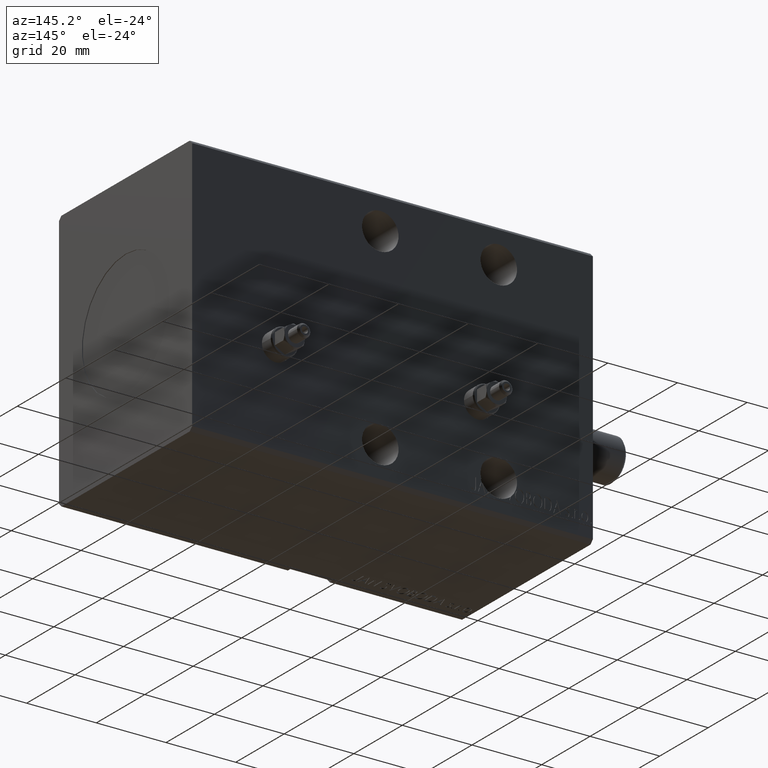
[diagram: clean part render]
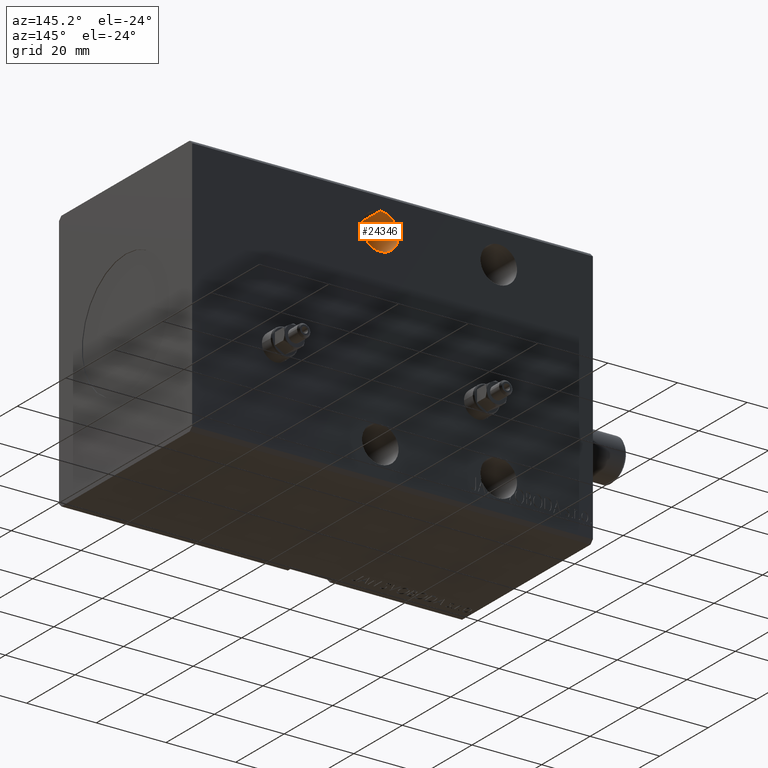
[diagram: same view with one face highlighted and labeled with its STEP entity id]
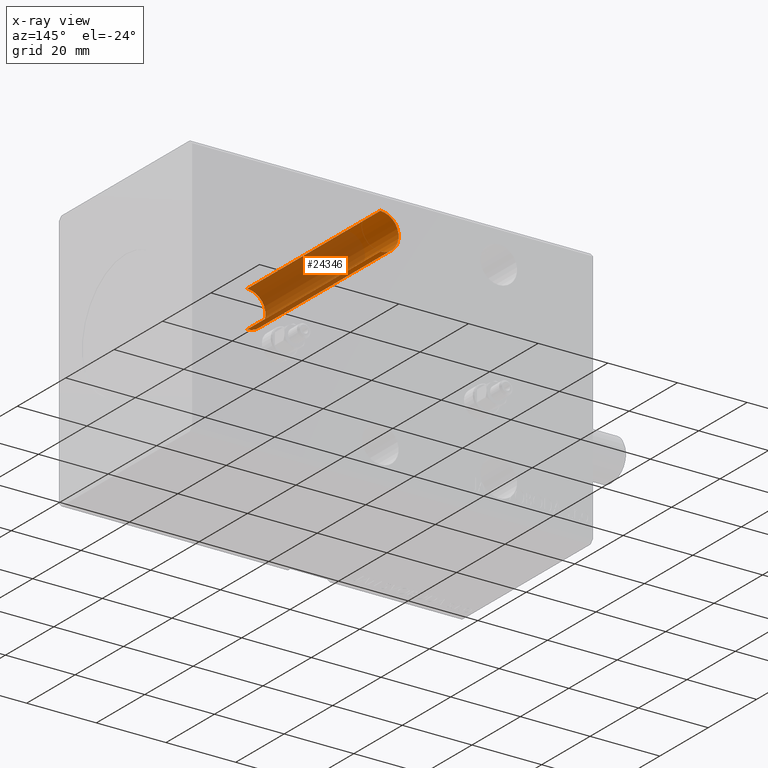
[diagram: x-ray of the same camera — body ghosted, the highlighted face saturated]
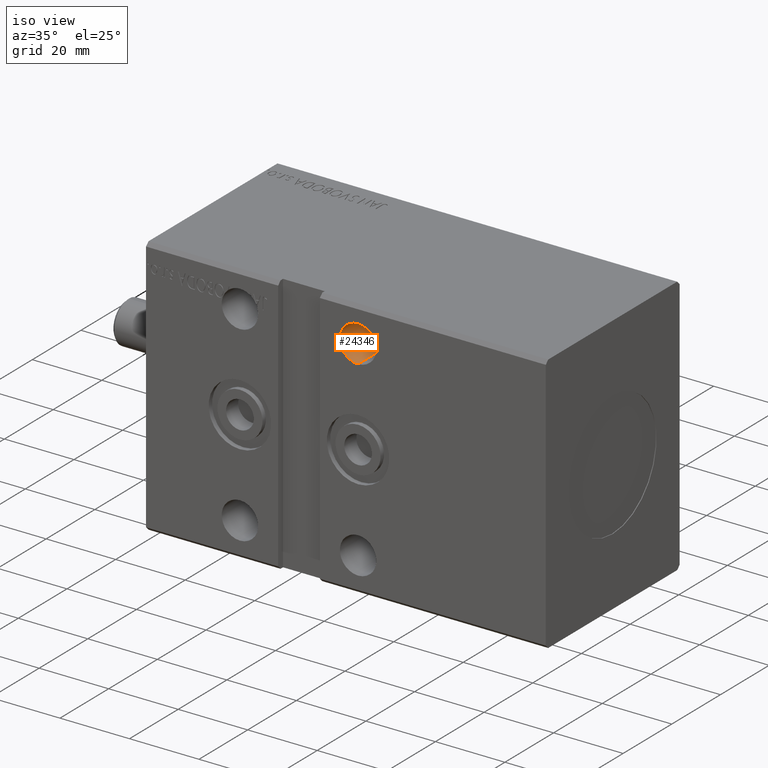
[diagram: same view with one face highlighted and labeled with its STEP entity id]
A machine part, auxiliary view. The second image highlights one B-rep face of the part: STEP entity #24346.
The next image is the same camera in x-ray: the body ghosted, the highlighted face saturated — about 74% of this face is hidden behind the body in this view.
A second angle (iso view) of the same face is appended — the face is thin or edge-on in the first view.
In plain terms, the highlighted cylindrical surface (edge-blend (fillet) strip) has radius 5.25 mm, axis along (-0, -1, -0).
Its self-contained STEP definition (entity closure, byte-faithful):
#3523 = EDGE_CURVE ( 'NONE', #14641, #39570, #24526, .T. ) ;
#4201 = AXIS2_PLACEMENT_3D ( 'NONE', #9587, #31334, #24740 ) ;
#4948 = LINE ( 'NONE', #24876, #15478 ) ;
#5161 = DIRECTION ( 'NONE',  ( -0.000000000000000000, -1.000000000000000000, -5.507058653894626469E-17 ) ) ;
#5566 = VERTEX_POINT ( 'NONE', #37839 ) ;
#6183 = ORIENTED_EDGE ( 'NONE', *, *, #39952, .T. ) ;
#6687 = LINE ( 'NONE', #22388, #36387 ) ;
#8211 = DIRECTION ( 'NONE',  ( -0.000000000000000000, -1.000000000000000000, -5.507058653894626469E-17 ) ) ;
#9587 = CARTESIAN_POINT ( 'NONE',  ( 61.00000000000000000, -27.50000000000000355, 27.49999999999999645 ) ) ;
#11156 = DIRECTION ( 'NONE',  ( -0.000000000000000000, 1.000000000000000000, 5.507058653894625853E-17 ) ) ;
#13739 = AXIS2_PLACEMENT_3D ( 'NONE', #21138, #11156, #30060 ) ;
#14641 = VERTEX_POINT ( 'NONE', #26061 ) ;
#15478 = VECTOR ( 'NONE', #5161, 1000.000000000000000 ) ;
#16589 = ORIENTED_EDGE ( 'NONE', *, *, #35901, .F. ) ;
#21138 = CARTESIAN_POINT ( 'NONE',  ( 61.00000000000000000, 27.50000000000003197, 27.50000000000000000 ) ) ;
#21372 = FACE_OUTER_BOUND ( 'NONE', #37545, .T. ) ;
#21715 = EDGE_CURVE ( 'NONE', #30048, #5566, #35475, .T. ) ;
#22388 = CARTESIAN_POINT ( 'NONE',  ( 61.00000000000000000, 27.50000000000003197, 22.24999999999999645 ) ) ;
#24346 = ADVANCED_FACE ( 'NONE', ( #21372 ), #37519, .F. ) ;
#24526 = CIRCLE ( 'NONE', #4201, 5.250000000000004441 ) ;
#24740 = DIRECTION ( 'NONE',  ( 0.000000000000000000, 0.000000000000000000, 1.000000000000000000 ) ) ;
#24876 = CARTESIAN_POINT ( 'NONE',  ( 61.00000000000000000, 27.50000000000003197, 32.75000000000000000 ) ) ;
#25609 = ORIENTED_EDGE ( 'NONE', *, *, #21715, .T. ) ;
#26061 = CARTESIAN_POINT ( 'NONE',  ( 61.00000000000000000, -27.50000000000000355, 32.75000000000000000 ) ) ;
#28102 = CARTESIAN_POINT ( 'NONE',  ( 61.00000000000000000, 27.50000000000003197, 22.24999999999999645 ) ) ;
#30048 = VERTEX_POINT ( 'NONE', #28102 ) ;
#30060 = DIRECTION ( 'NONE',  ( 0.000000000000000000, 0.000000000000000000, 1.000000000000000000 ) ) ;
#31008 = ORIENTED_EDGE ( 'NONE', *, *, #3523, .T. ) ;
#31334 = DIRECTION ( 'NONE',  ( 0.000000000000000000, -1.000000000000000000, -4.752667057470705491E-17 ) ) ;
#31468 = AXIS2_PLACEMENT_3D ( 'NONE', #34344, #8211, #40488 ) ;
#34344 = CARTESIAN_POINT ( 'NONE',  ( 61.00000000000000000, 27.50000000000003197, 27.50000000000000000 ) ) ;
#35366 = DIRECTION ( 'NONE',  ( -0.000000000000000000, -1.000000000000000000, -5.507058653894626469E-17 ) ) ;
#35475 = CIRCLE ( 'NONE', #13739, 5.250000000000000888 ) ;
#35901 = EDGE_CURVE ( 'NONE', #30048, #39570, #6687, .T. ) ;
#36387 = VECTOR ( 'NONE', #35366, 1000.000000000000000 ) ;
#36402 = CARTESIAN_POINT ( 'NONE',  ( 61.00000000000000000, -27.50000000000000355, 22.24999999999999289 ) ) ;
#37519 = CYLINDRICAL_SURFACE ( 'NONE', #31468, 5.250000000000004441 ) ;
#37545 = EDGE_LOOP ( 'NONE', ( #25609, #6183, #31008, #16589 ) ) ;
#37839 = CARTESIAN_POINT ( 'NONE',  ( 61.00000000000000000, 27.50000000000003197, 32.75000000000000000 ) ) ;
#39570 = VERTEX_POINT ( 'NONE', #36402 ) ;
#39952 = EDGE_CURVE ( 'NONE', #5566, #14641, #4948, .T. ) ;
#40488 = DIRECTION ( 'NONE',  ( 0.000000000000000000, 0.000000000000000000, -1.000000000000000000 ) ) ;